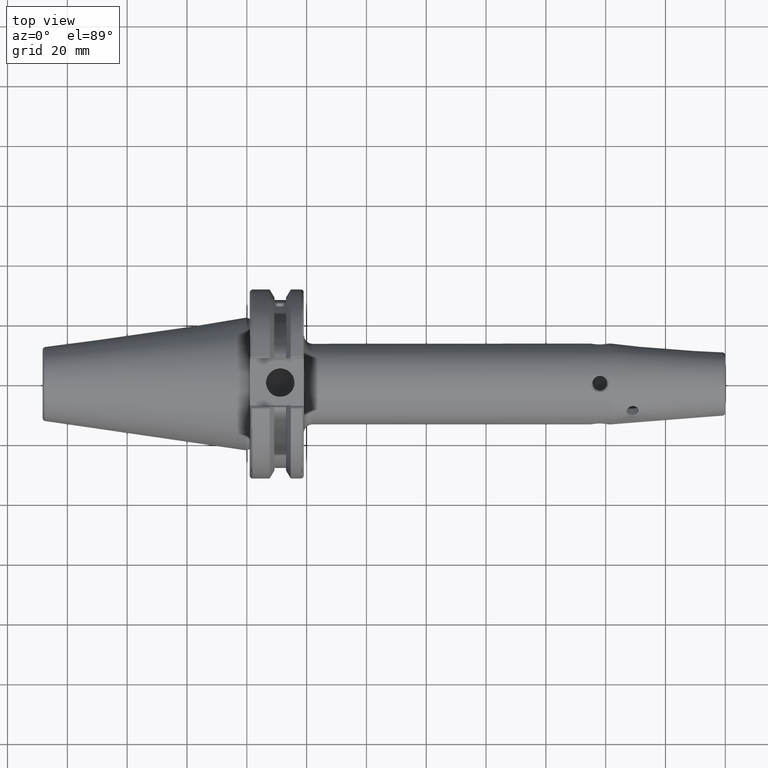
[diagram: clean part render]
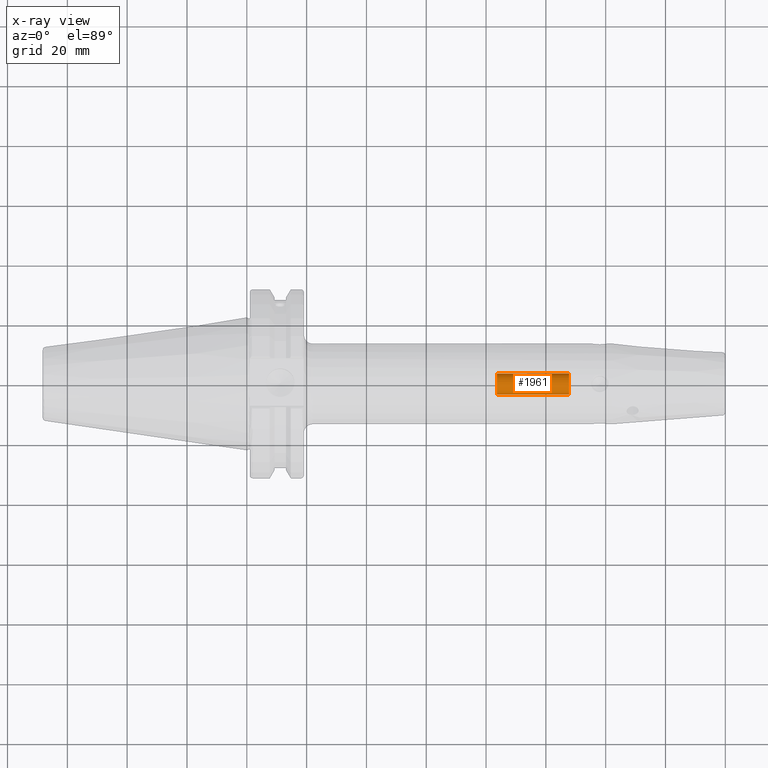
[diagram: x-ray — body ghosted, one internal face saturated and labeled with its STEP entity id]
A machine part, top view, then the same camera in x-ray: the body is ghosted and one INTERNAL B-rep face — a face not visible from any outside direction — is saturated and labeled: STEP entity #1961.
In plain terms, the highlighted cylindrical surface (bore or boss wall) has radius 3.5 mm, axis along (1, 0, 0).
Its self-contained STEP definition (entity closure, byte-faithful):
#182=FACE_OUTER_BOUND('',#306,.T.);
#306=EDGE_LOOP('',(#1443,#1444,#1445,#1446,#1447));
#434=LINE('',#3950,#551);
#551=VECTOR('',#2440,3.5);
#661=CIRCLE('',#2122,3.5);
#662=CIRCLE('',#2124,3.5);
#663=CIRCLE('',#2125,3.5);
#847=VERTEX_POINT('',#3943);
#848=VERTEX_POINT('',#3947);
#849=VERTEX_POINT('',#3948);
#1072=EDGE_CURVE('',#847,#847,#661,.T.);
#1074=EDGE_CURVE('',#848,#849,#662,.T.);
#1075=EDGE_CURVE('',#848,#847,#434,.T.);
#1076=EDGE_CURVE('',#849,#848,#663,.T.);
#1443=ORIENTED_EDGE('',*,*,#1074,.F.);
#1444=ORIENTED_EDGE('',*,*,#1075,.T.);
#1445=ORIENTED_EDGE('',*,*,#1072,.T.);
#1446=ORIENTED_EDGE('',*,*,#1075,.F.);
#1447=ORIENTED_EDGE('',*,*,#1076,.F.);
#1902=CYLINDRICAL_SURFACE('',#2123,3.5);
#1961=ADVANCED_FACE('',(#182),#1902,.F.);
#2122=AXIS2_PLACEMENT_3D('',#3944,#2433,#2434);
#2123=AXIS2_PLACEMENT_3D('',#3946,#2436,#2437);
#2124=AXIS2_PLACEMENT_3D('',#3949,#2438,#2439);
#2125=AXIS2_PLACEMENT_3D('',#3951,#2441,#2442);
#2433=DIRECTION('center_axis',(1.,0.,0.));
#2434=DIRECTION('ref_axis',(0.,1.,0.));
#2436=DIRECTION('center_axis',(1.,0.,0.));
#2437=DIRECTION('ref_axis',(0.,1.,0.));
#2438=DIRECTION('center_axis',(1.,0.,0.));
#2439=DIRECTION('ref_axis',(0.,1.,0.));
#2440=DIRECTION('',(1.,0.,0.));
#2441=DIRECTION('center_axis',(1.,0.,0.));
#2442=DIRECTION('ref_axis',(0.,1.,0.));
#3943=CARTESIAN_POINT('',(107.75,-3.5,-4.28626379701573E-16));
#3944=CARTESIAN_POINT('Origin',(107.75,0.,0.));
#3946=CARTESIAN_POINT('Origin',(19.75,0.,0.));
#3947=CARTESIAN_POINT('',(83.5525818570827,-3.5,-4.28626379701574E-16));
#3948=CARTESIAN_POINT('',(83.5525818570827,-4.28626379701574E-16,-3.5));
#3949=CARTESIAN_POINT('Origin',(83.5525818570827,0.,0.));
#3950=CARTESIAN_POINT('',(19.75,-3.5,-4.28626379701574E-16));
#3951=CARTESIAN_POINT('Origin',(83.5525818570827,0.,0.));